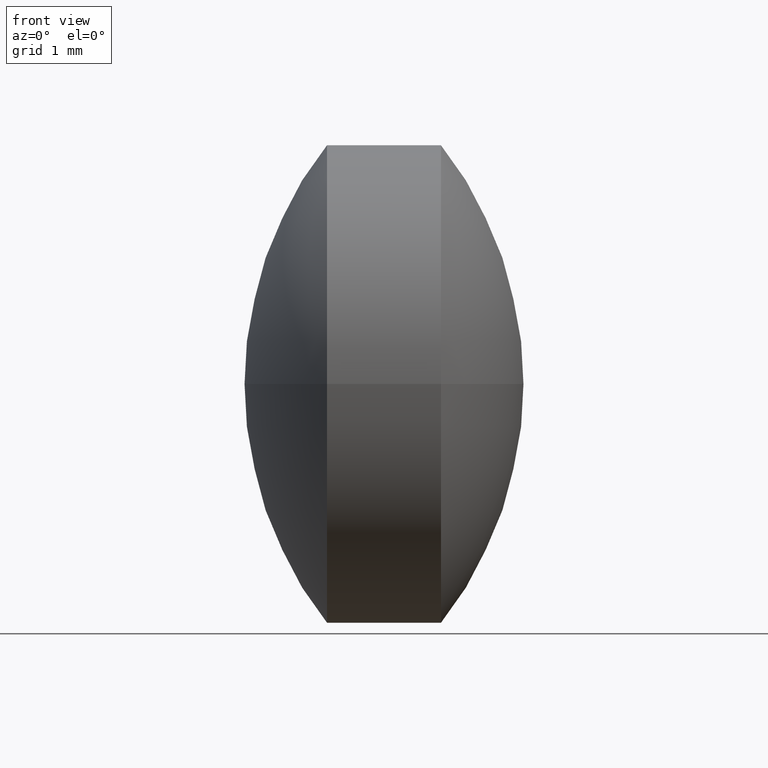
[diagram: clean part render]
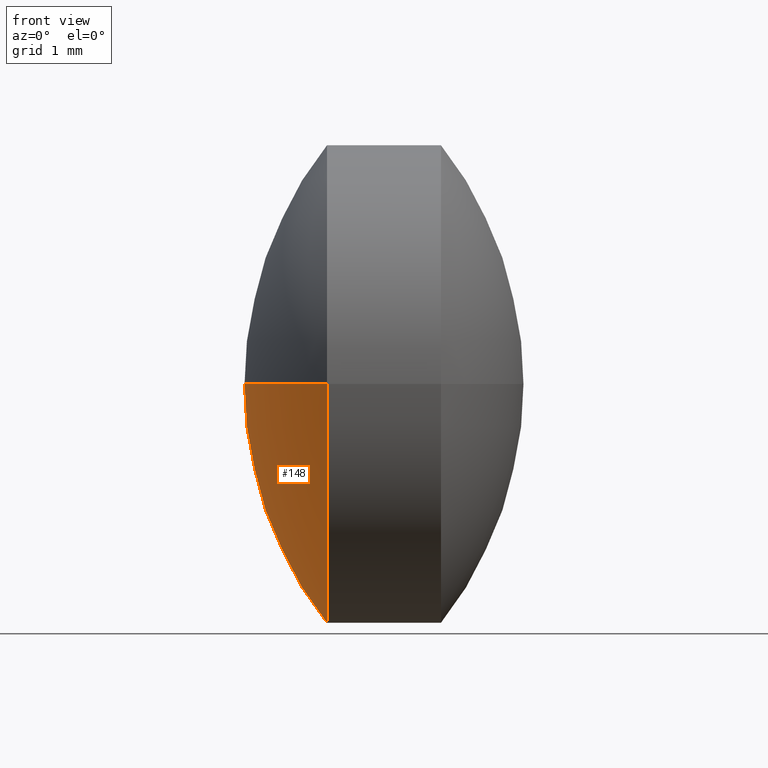
[diagram: same view with one face highlighted and labeled with its STEP entity id]
A machine part, front view. The second image highlights one B-rep face of the part: STEP entity #148.
In plain terms, the highlighted spherical surface has radius 5.1151 mm.
Its self-contained STEP definition (entity closure, byte-faithful):
#12 = CARTESIAN_POINT ( 'NONE',  ( 20.69435814883362200, 15.20832724590803800, 0.0000000000000000000 ) ) ;
#18 = FACE_OUTER_BOUND ( 'NONE', #260, .T. ) ;
#23 = ORIENTED_EDGE ( 'NONE', *, *, #204, .F. ) ;
#26 = CARTESIAN_POINT ( 'NONE',  ( 20.69435814883361500, 8.908327245908047600, -3.857637417314156800E-016 ) ) ;
#34 = CARTESIAN_POINT ( 'NONE',  ( 19.60936314883361900, 12.05832724590804400, 0.0000000000000000000 ) ) ;
#38 = DIRECTION ( 'NONE',  ( 0.0000000000000000000, 1.000000000000000000, 1.224646799147353000E-016 ) ) ;
#60 = DIRECTION ( 'NONE',  ( 1.000000000000000000, 0.0000000000000000000, 0.0000000000000000000 ) ) ;
#74 = VERTEX_POINT ( 'NONE', #34 ) ;
#103 = DIRECTION ( 'NONE',  ( 0.0000000000000000000, 0.0000000000000000000, 1.000000000000000000 ) ) ;
#114 = ORIENTED_EDGE ( 'NONE', *, *, #247, .T. ) ;
#129 = CARTESIAN_POINT ( 'NONE',  ( 24.72446236589222200, 12.05832724590803700, 0.0000000000000000000 ) ) ;
#132 = CARTESIAN_POINT ( 'NONE',  ( 24.72446236589222200, 12.05832724590803700, 0.0000000000000000000 ) ) ;
#145 = DIRECTION ( 'NONE',  ( -1.101411730778927500E-015, -1.000000000000000000, 0.0000000000000000000 ) ) ;
#148 = ADVANCED_FACE ( 'NONE', ( #18 ), #154, .T. ) ;
#149 = CARTESIAN_POINT ( 'NONE',  ( 20.69435814883361900, 12.05832724590804300, 0.0000000000000000000 ) ) ;
#154 = SPHERICAL_SURFACE ( 'NONE', #174, 5.115099217058601200 ) ;
#161 = DIRECTION ( 'NONE',  ( 1.619172340779310500E-031, 1.224646799147353200E-016, -1.000000000000000000 ) ) ;
#171 = AXIS2_PLACEMENT_3D ( 'NONE', #244, #161, #38 ) ;
#174 = AXIS2_PLACEMENT_3D ( 'NONE', #129, #292, #270 ) ;
#185 = CIRCLE ( 'NONE', #200, 3.149999999999993200 ) ;
#194 = VERTEX_POINT ( 'NONE', #12 ) ;
#198 = CIRCLE ( 'NONE', #171, 5.115099217058602000 ) ;
#200 = AXIS2_PLACEMENT_3D ( 'NONE', #149, #208, #145 ) ;
#204 = EDGE_CURVE ( 'NONE', #194, #74, #219, .T. ) ;
#208 = DIRECTION ( 'NONE',  ( -1.000000000000000000, 1.322154552567026900E-015, -0.0000000000000000000 ) ) ;
#216 = ORIENTED_EDGE ( 'NONE', *, *, #263, .T. ) ;
#219 = CIRCLE ( 'NONE', #221, 5.115099217058602000 ) ;
#221 = AXIS2_PLACEMENT_3D ( 'NONE', #132, #103, #60 ) ;
#244 = CARTESIAN_POINT ( 'NONE',  ( 24.72446236589222200, 12.05832724590803700, 0.0000000000000000000 ) ) ;
#247 = EDGE_CURVE ( 'NONE', #282, #74, #198, .T. ) ;
#260 = EDGE_LOOP ( 'NONE', ( #216, #114, #23 ) ) ;
#263 = EDGE_CURVE ( 'NONE', #194, #282, #185, .T. ) ;
#270 = DIRECTION ( 'NONE',  ( 1.356551184924500000E-015, 1.000000000000000000, 0.0000000000000000000 ) ) ;
#282 = VERTEX_POINT ( 'NONE', #26 ) ;
#292 = DIRECTION ( 'NONE',  ( 0.0000000000000000000, 0.0000000000000000000, -1.000000000000000000 ) ) ;